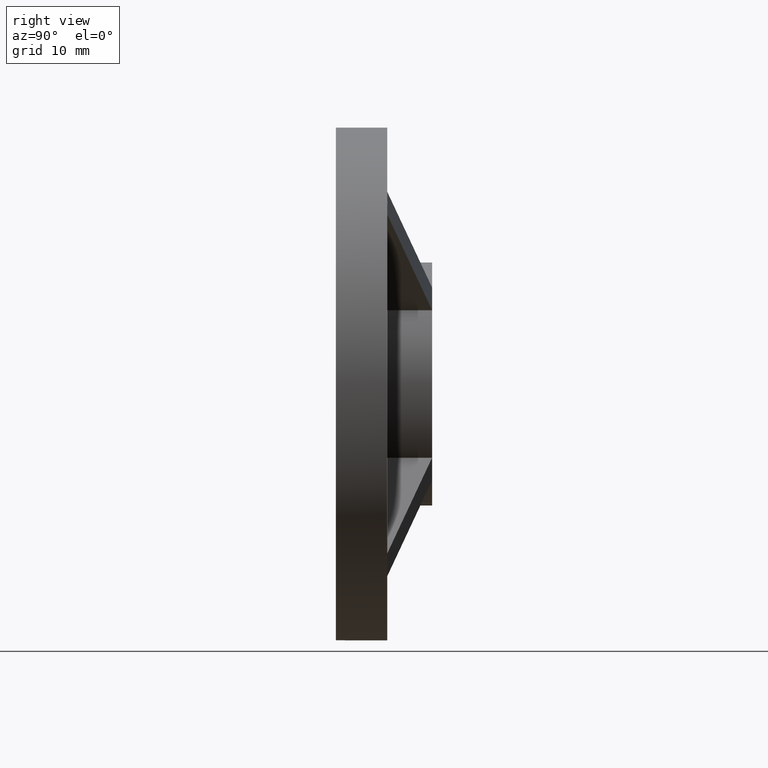
[diagram: clean part render]
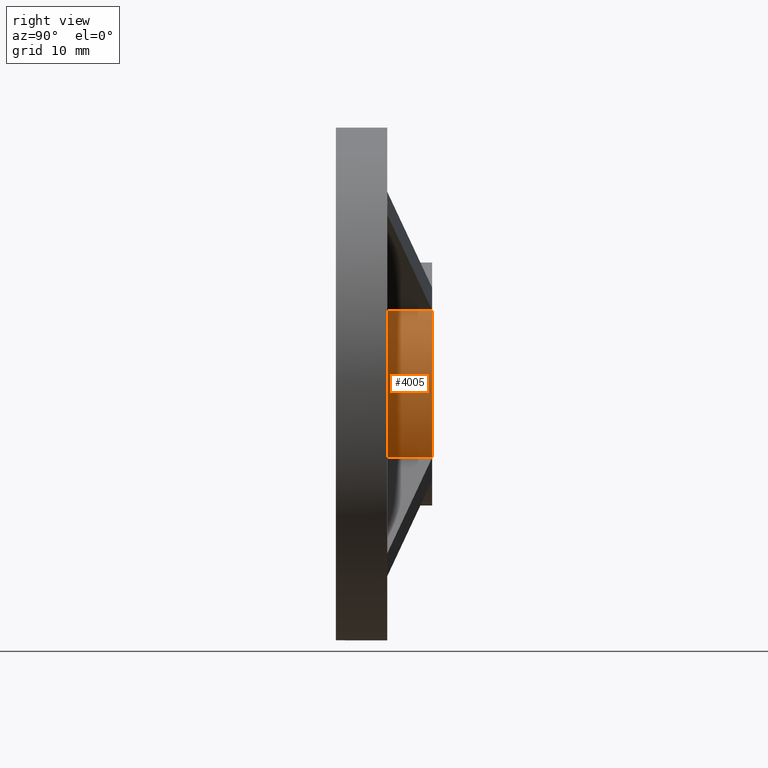
[diagram: same view with one face highlighted and labeled with its STEP entity id]
A machine part, right view. The second image highlights one B-rep face of the part: STEP entity #4005.
In plain terms, the highlighted cylindrical surface (partial cylindrical patch) has radius 18.95 mm, axis along (-0, -1, -0).
Its self-contained STEP definition (entity closure, byte-faithful):
#49 = ORIENTED_EDGE ( 'NONE', *, *, #683, .T. ) ;
#484 = DIRECTION ( 'NONE',  ( 0.000000000000000000, 0.000000000000000000, 1.000000000000000000 ) ) ;
#488 = ORIENTED_EDGE ( 'NONE', *, *, #7802, .F. ) ;
#683 = EDGE_CURVE ( 'NONE', #9724, #4937, #8153, .T. ) ;
#939 = VERTEX_POINT ( 'NONE', #4102 ) ;
#1056 = DIRECTION ( 'NONE',  ( 0.000000000000000000, 0.000000000000000000, -1.000000000000000000 ) ) ;
#1609 = LINE ( 'NONE', #4585, #6829 ) ;
#2203 = EDGE_LOOP ( 'NONE', ( #11676, #488, #6481, #49 ) ) ;
#2377 = CARTESIAN_POINT ( 'NONE',  ( 0.000000000000000000, 8.000000000000000000, 0.000000000000000000 ) ) ;
#2890 = DIRECTION ( 'NONE',  ( -0.000000000000000000, -1.000000000000000000, -0.000000000000000000 ) ) ;
#3028 = CARTESIAN_POINT ( 'NONE',  ( 0.000000000000000000, 15.00000000000000000, 0.000000000000000000 ) ) ;
#3111 = CARTESIAN_POINT ( 'NONE',  ( 0.000000000000000000, 15.00000000000000000, 0.000000000000000000 ) ) ;
#3233 = CARTESIAN_POINT ( 'NONE',  ( 15.05032130068127927, 41.13743005518215057, -11.51478739474850954 ) ) ;
#3474 = CARTESIAN_POINT ( 'NONE',  ( 15.05032130068127927, 8.000000000000000000, -11.51478739474850954 ) ) ;
#4005 = ADVANCED_FACE ( 'NONE', ( #12550 ), #8740, .T. ) ;
#4102 = CARTESIAN_POINT ( 'NONE',  ( 15.05032130068127927, 15.00000000000000000, -11.51478739474850954 ) ) ;
#4585 = CARTESIAN_POINT ( 'NONE',  ( 15.05032130068124552, 41.13743005518215057, 11.51478739474855395 ) ) ;
#4937 = VERTEX_POINT ( 'NONE', #3474 ) ;
#5118 = CIRCLE ( 'NONE', #8155, 18.95000000000000284 ) ;
#5999 = AXIS2_PLACEMENT_3D ( 'NONE', #3028, #10853, #1056 ) ;
#6057 = DIRECTION ( 'NONE',  ( 0.000000000000000000, 1.000000000000000000, 0.000000000000000000 ) ) ;
#6352 = DIRECTION ( 'NONE',  ( 0.000000000000000000, 1.000000000000000000, 0.000000000000000000 ) ) ;
#6481 = ORIENTED_EDGE ( 'NONE', *, *, #12062, .T. ) ;
#6592 = EDGE_CURVE ( 'NONE', #939, #4937, #9443, .T. ) ;
#6829 = VECTOR ( 'NONE', #2890, 1000.000000000000000 ) ;
#6900 = DIRECTION ( 'NONE',  ( 0.000000000000000000, 0.000000000000000000, 1.000000000000000000 ) ) ;
#7136 = VECTOR ( 'NONE', #8264, 1000.000000000000000 ) ;
#7802 = EDGE_CURVE ( 'NONE', #11512, #939, #5118, .T. ) ;
#8153 = CIRCLE ( 'NONE', #11750, 18.95000000000000284 ) ;
#8155 = AXIS2_PLACEMENT_3D ( 'NONE', #3111, #6057, #6900 ) ;
#8264 = DIRECTION ( 'NONE',  ( -0.000000000000000000, -1.000000000000000000, -0.000000000000000000 ) ) ;
#8740 = CYLINDRICAL_SURFACE ( 'NONE', #5999, 18.95000000000000284 ) ;
#8910 = CARTESIAN_POINT ( 'NONE',  ( 15.05032130068125973, 15.00000000000000000, 11.51478739474854329 ) ) ;
#9443 = LINE ( 'NONE', #3233, #7136 ) ;
#9724 = VERTEX_POINT ( 'NONE', #12312 ) ;
#10853 = DIRECTION ( 'NONE',  ( -0.000000000000000000, -1.000000000000000000, -0.000000000000000000 ) ) ;
#11512 = VERTEX_POINT ( 'NONE', #8910 ) ;
#11676 = ORIENTED_EDGE ( 'NONE', *, *, #6592, .F. ) ;
#11750 = AXIS2_PLACEMENT_3D ( 'NONE', #2377, #6352, #484 ) ;
#12062 = EDGE_CURVE ( 'NONE', #11512, #9724, #1609, .T. ) ;
#12312 = CARTESIAN_POINT ( 'NONE',  ( 15.05032130068124552, 8.000000000000000000, 11.51478739474855395 ) ) ;
#12550 = FACE_OUTER_BOUND ( 'NONE', #2203, .T. ) ;